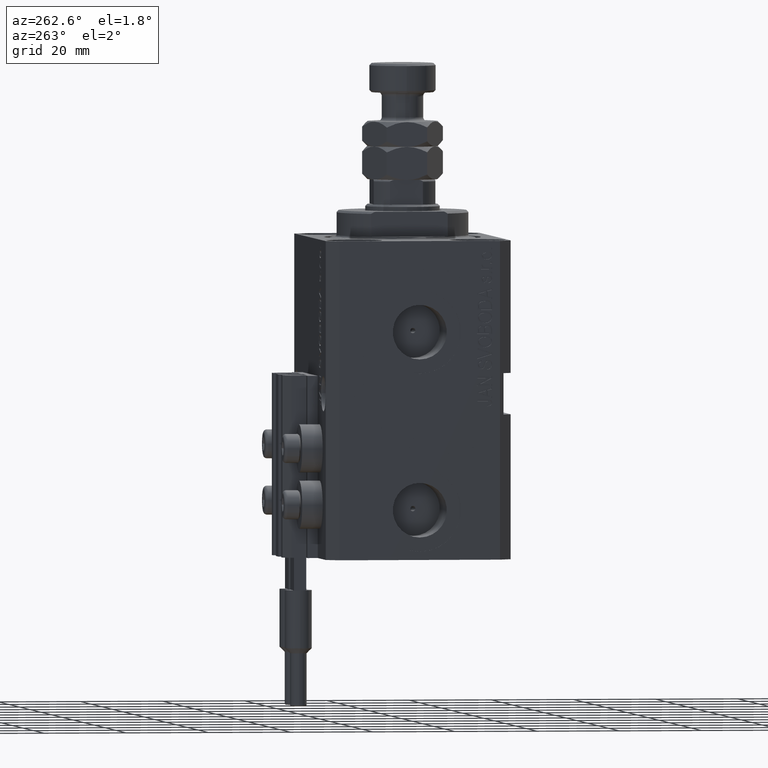
[diagram: clean part render]
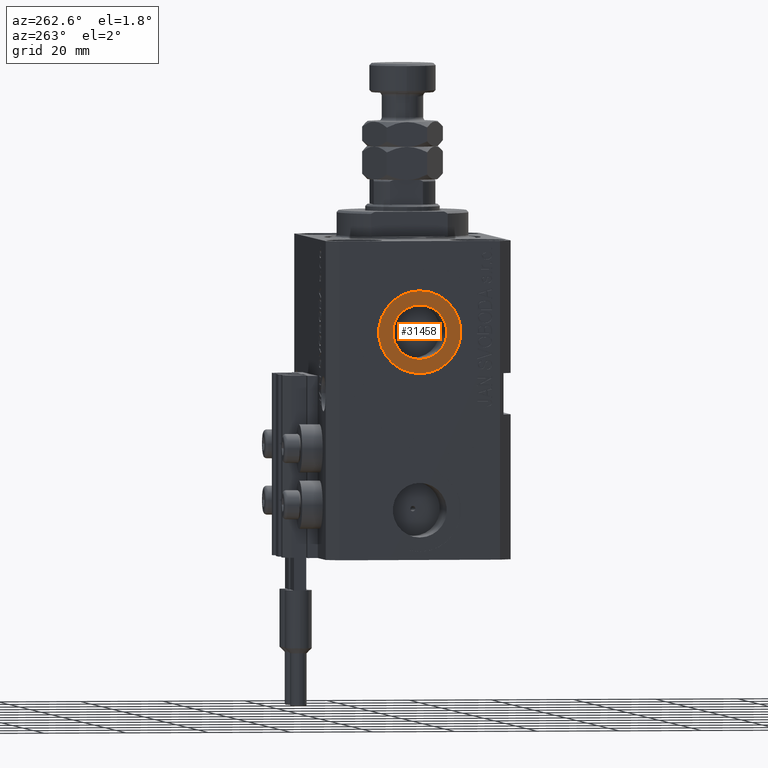
[diagram: same view with one face highlighted and labeled with its STEP entity id]
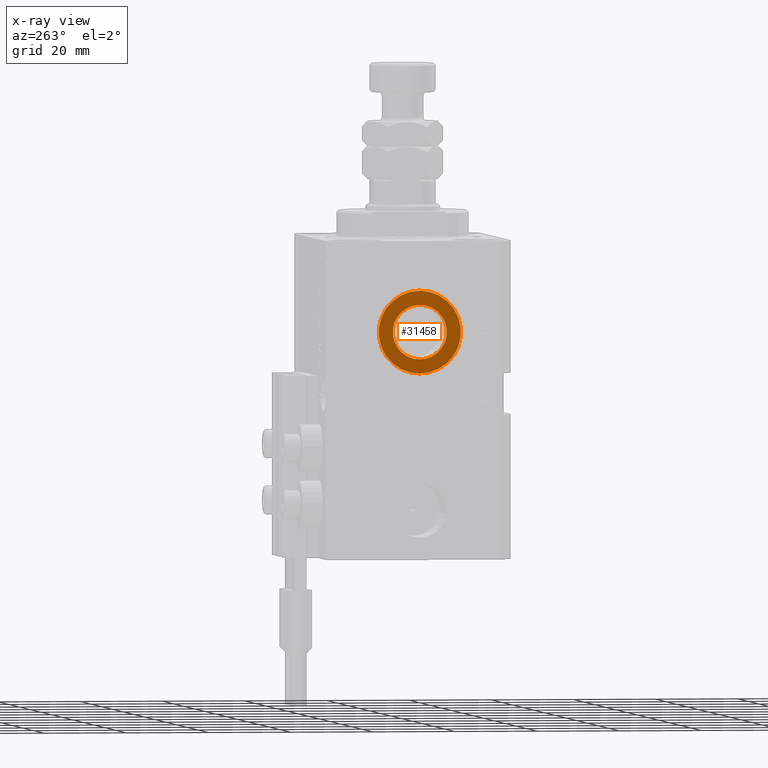
[diagram: x-ray of the same camera — body ghosted, the highlighted face saturated]
A machine part, auxiliary view. The second image highlights one B-rep face of the part: STEP entity #31458.
The next image is the same camera in x-ray: the body ghosted, the highlighted face saturated — about 0% of this face is hidden behind the body in this view.
In plain terms, the highlighted planar face has unit normal (-1, 0, 0).
Its self-contained STEP definition (entity closure, byte-faithful):
#572 = CIRCLE ( 'NONE', #28957, 6.579999999999999183 ) ;
#791 = AXIS2_PLACEMENT_3D ( 'NONE', #15847, #46037, #8240 ) ;
#2099 = AXIS2_PLACEMENT_3D ( 'NONE', #30346, #7012, #10582 ) ;
#2308 = DIRECTION ( 'NONE',  ( 0.000000000000000000, 0.000000000000000000, 1.000000000000000000 ) ) ;
#2763 = EDGE_CURVE ( 'NONE', #11337, #31365, #46739, .T. ) ;
#3020 = EDGE_CURVE ( 'NONE', #9748, #42299, #572, .T. ) ;
#5424 = DIRECTION ( 'NONE',  ( 0.000000000000000000, 0.000000000000000000, 1.000000000000000000 ) ) ;
#5940 = FACE_OUTER_BOUND ( 'NONE', #28643, .T. ) ;
#7012 = DIRECTION ( 'NONE',  ( -1.000000000000000000, 0.000000000000000000, 0.000000000000000000 ) ) ;
#7063 = CIRCLE ( 'NONE', #2099, 10.00000000000000000 ) ;
#8240 = DIRECTION ( 'NONE',  ( 0.000000000000000000, 0.000000000000000000, 1.000000000000000000 ) ) ;
#9486 = PLANE ( 'NONE',  #27546 ) ;
#9600 = ORIENTED_EDGE ( 'NONE', *, *, #3020, .F. ) ;
#9748 = VERTEX_POINT ( 'NONE', #41891 ) ;
#10582 = DIRECTION ( 'NONE',  ( 0.000000000000000000, 0.000000000000000000, 1.000000000000000000 ) ) ;
#11294 = EDGE_CURVE ( 'NONE', #42299, #9748, #18617, .T. ) ;
#11337 = VERTEX_POINT ( 'NONE', #19902 ) ;
#12798 = FACE_BOUND ( 'NONE', #43450, .T. ) ;
#14217 = ORIENTED_EDGE ( 'NONE', *, *, #11294, .F. ) ;
#15847 = CARTESIAN_POINT ( 'NONE',  ( -32.39999999999650271, 0.000000000000000000, -22.00000000000000000 ) ) ;
#17494 = EDGE_CURVE ( 'NONE', #31365, #11337, #7063, .T. ) ;
#18617 = CIRCLE ( 'NONE', #791, 6.579999999999999183 ) ;
#19902 = CARTESIAN_POINT ( 'NONE',  ( -32.39999999999650271, 0.000000000000000000, -11.99999999999999822 ) ) ;
#20703 = CARTESIAN_POINT ( 'NONE',  ( -32.39999999999650271, 0.000000000000000000, -15.41999999999999993 ) ) ;
#21647 = AXIS2_PLACEMENT_3D ( 'NONE', #31495, #31753, #46960 ) ;
#24973 = CARTESIAN_POINT ( 'NONE',  ( -32.39999999999650271, 0.000000000000000000, -22.00000000000000000 ) ) ;
#26036 = ORIENTED_EDGE ( 'NONE', *, *, #2763, .T. ) ;
#26045 = ORIENTED_EDGE ( 'NONE', *, *, #17494, .T. ) ;
#26142 = CARTESIAN_POINT ( 'NONE',  ( -32.39999999999650271, 0.000000000000000000, -22.00000000000000000 ) ) ;
#27546 = AXIS2_PLACEMENT_3D ( 'NONE', #24973, #32582, #5424 ) ;
#28643 = EDGE_LOOP ( 'NONE', ( #26036, #26045 ) ) ;
#28957 = AXIS2_PLACEMENT_3D ( 'NONE', #26142, #49479, #2308 ) ;
#30346 = CARTESIAN_POINT ( 'NONE',  ( -32.39999999999650271, 0.000000000000000000, -22.00000000000000000 ) ) ;
#31365 = VERTEX_POINT ( 'NONE', #41507 ) ;
#31458 = ADVANCED_FACE ( 'NONE', ( #12798, #5940 ), #9486, .T. ) ;
#31495 = CARTESIAN_POINT ( 'NONE',  ( -32.39999999999650271, 0.000000000000000000, -22.00000000000000000 ) ) ;
#31753 = DIRECTION ( 'NONE',  ( -1.000000000000000000, 0.000000000000000000, 0.000000000000000000 ) ) ;
#32582 = DIRECTION ( 'NONE',  ( -1.000000000000000000, 0.000000000000000000, 0.000000000000000000 ) ) ;
#41507 = CARTESIAN_POINT ( 'NONE',  ( -32.39999999999650271, 1.224646799147353059E-15, -32.00000000000000000 ) ) ;
#41891 = CARTESIAN_POINT ( 'NONE',  ( -32.39999999999650271, 8.058175938389579572E-16, -28.57999999999999829 ) ) ;
#42299 = VERTEX_POINT ( 'NONE', #20703 ) ;
#43450 = EDGE_LOOP ( 'NONE', ( #14217, #9600 ) ) ;
#46037 = DIRECTION ( 'NONE',  ( -1.000000000000000000, 0.000000000000000000, 0.000000000000000000 ) ) ;
#46739 = CIRCLE ( 'NONE', #21647, 10.00000000000000000 ) ;
#46960 = DIRECTION ( 'NONE',  ( 0.000000000000000000, 0.000000000000000000, 1.000000000000000000 ) ) ;
#49479 = DIRECTION ( 'NONE',  ( -1.000000000000000000, 0.000000000000000000, 0.000000000000000000 ) ) ;